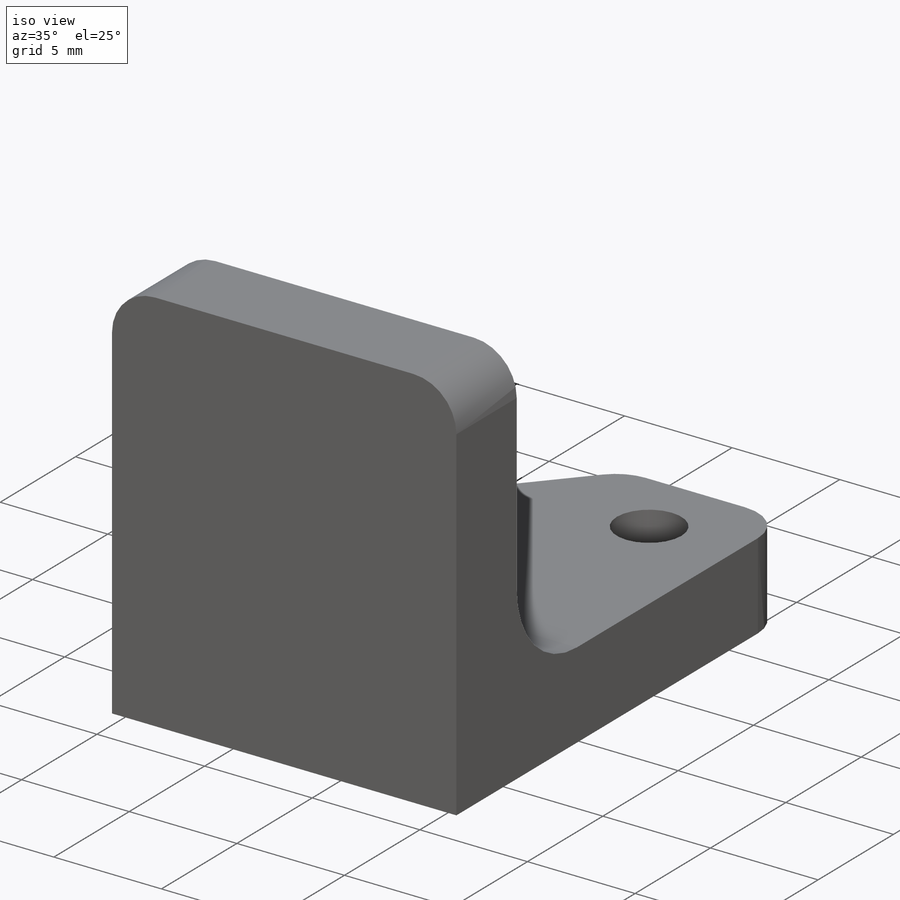
[diagram: iso view]
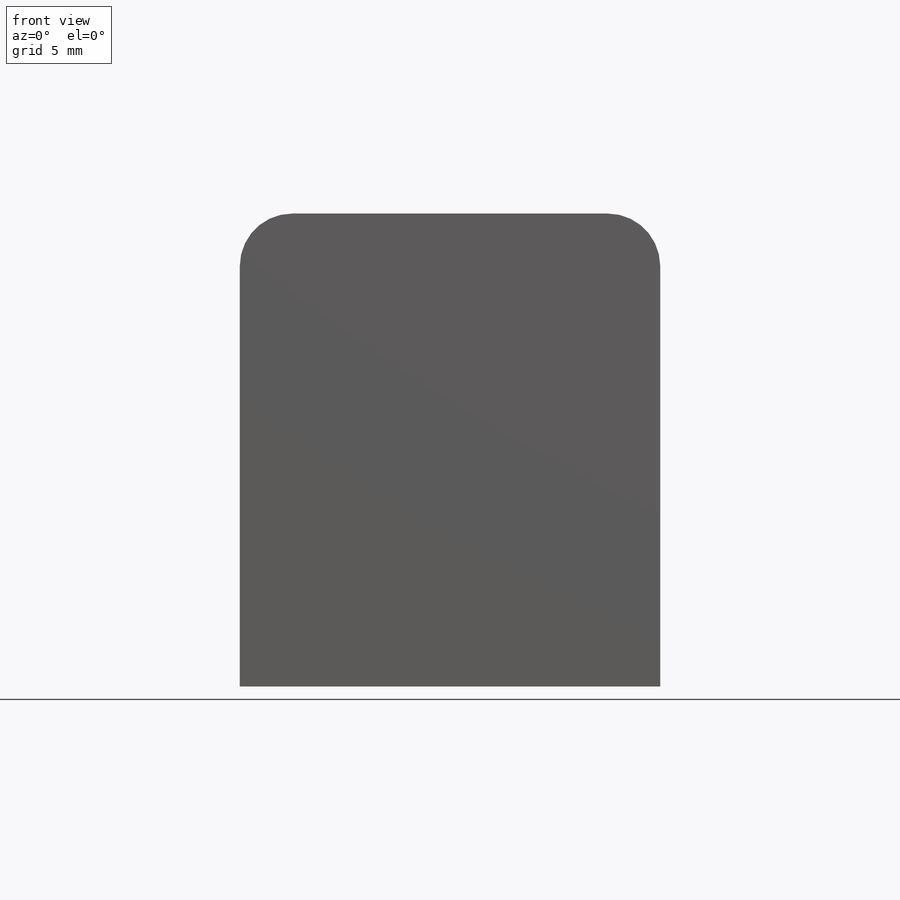
[diagram: front view]
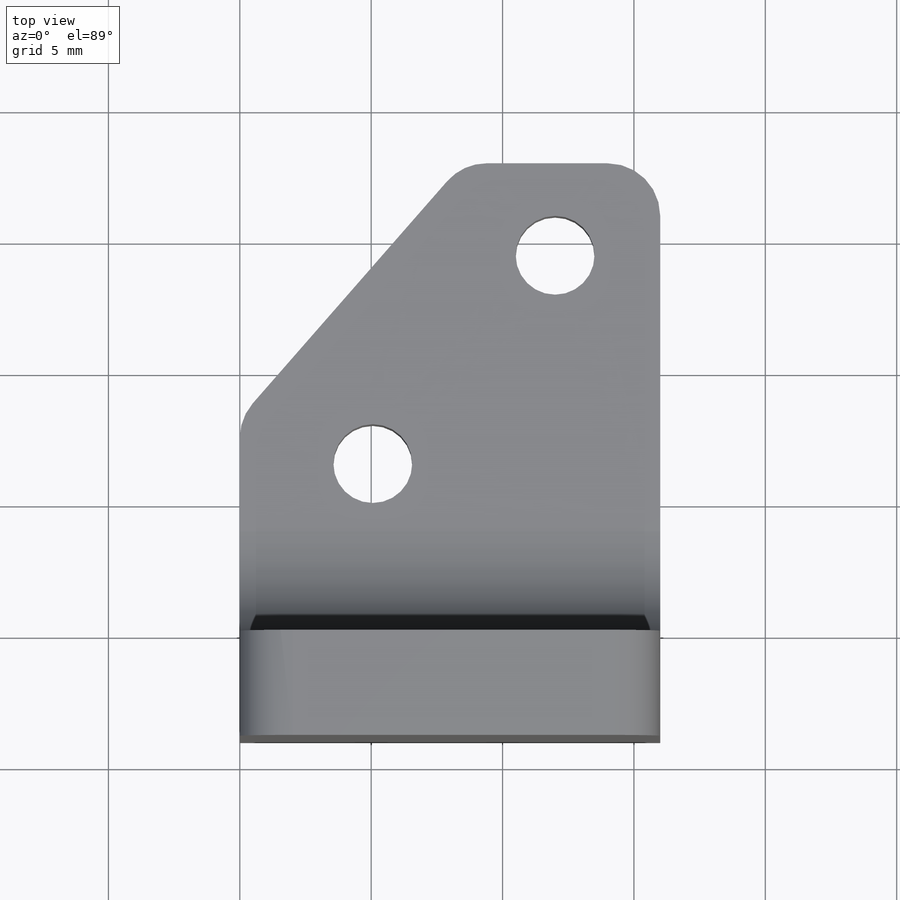
[diagram: top view]
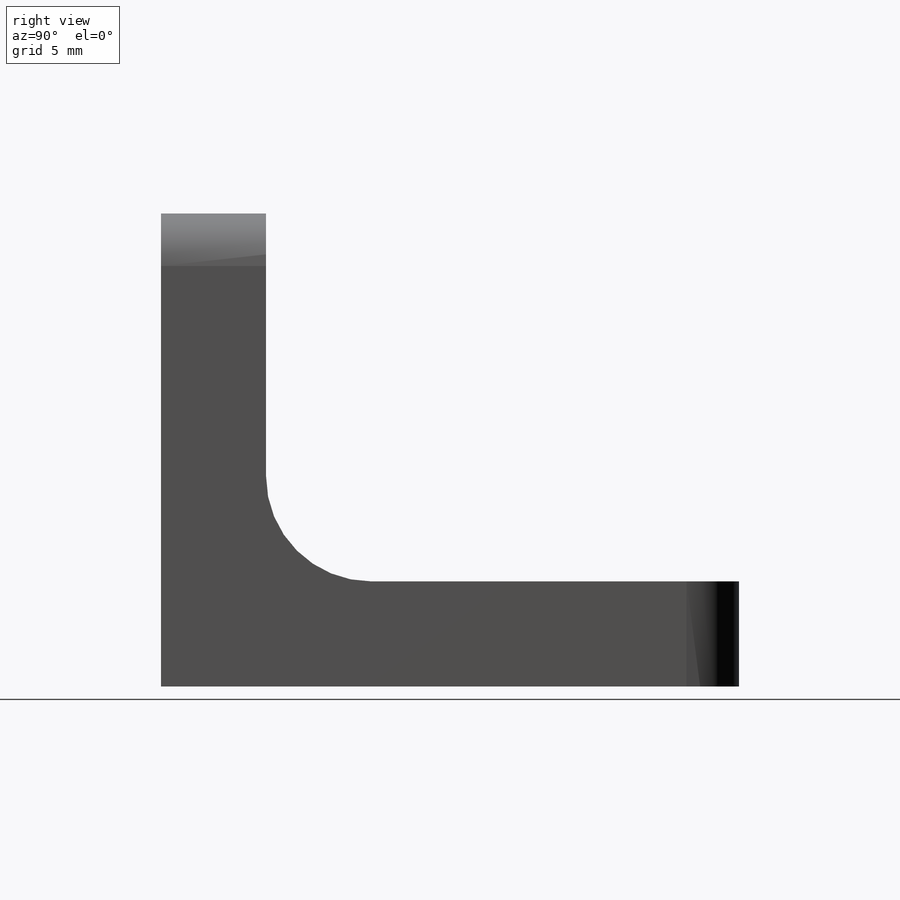
[diagram: right view]
SOLIDWORKS PART (.sldprt)
format: sldprt  version: not decoded by parser v0  size: 204,800 bytes
history: native  units: mm
features: sketch x6, extrude x2, fillet x2, material x1, hole x1, cut_extrude x1 (+12 scaffold rows collapsed)
feature tree (25):
  scaffold x12  (default folders/planes/origin — collapsed)
  material  "Material <not specified>"
  sketch  "Sketch1"  dims[D3=2.0mm D1=18.0mm D2=16.0mm]
  extrude  "Boss-Extrude1"  Depth=4mm
  sketch  "Sketch2"  dims[D1=18.0mm]
  extrude  "Boss-Extrude2"  Depth=4mm
  fillet  "Fillet1"  Radius=4mm
  sketch  "Sketch3"  dims[c1.D1=3.0mm c1.D2=3.0mm c2.D1=0.0mm]
  hole  "Ø3.0 (3) Diameter Hole1"  Diameter=3mm Depth=30mm
  sketch  "Sketch4"
  sketch  "Sketch5"  dims[Hole Dia.=3.0mm Hole Depth=30.0mm Drill Angle=118.0deg]
  sketch  "Sketch6"
  cut_extrude  "Cut-Extrude1"  Depth=10mm
  fillet  "Fillet2"  Radius=2mm
decode coverage: 10 of 12 modeling features carry decoded parameters
note: suppression state not decoded; provenance and decode notes live in map.json
